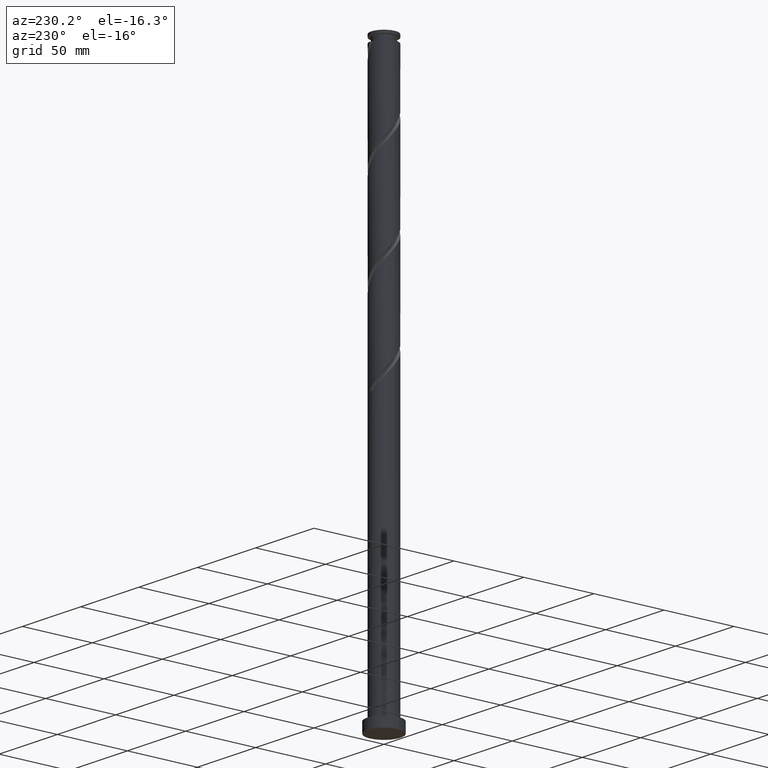
[diagram: clean part render]
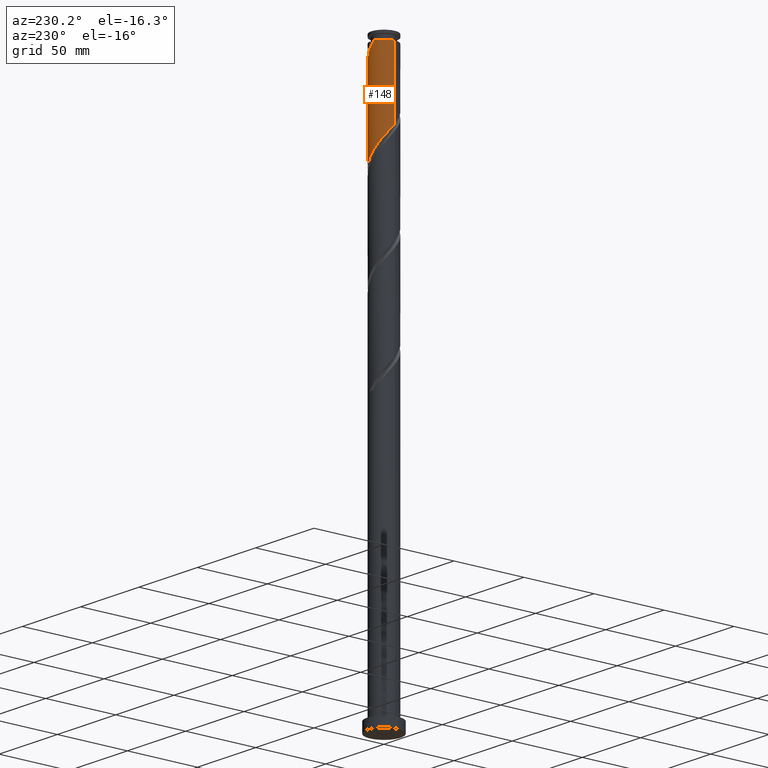
[diagram: same view with one face highlighted and labeled with its STEP entity id]
A machine part, auxiliary view. The second image highlights one B-rep face of the part: STEP entity #148.
In plain terms, the highlighted cylindrical surface (edge-blend (fillet) strip) has radius 9 mm, axis along (-0, -0, -1).
Its self-contained STEP definition (entity closure, byte-faithful):
#69 = AXIS2_PLACEMENT_3D ( 'NONE', #1896, #665, #1909 ) ;
#108 = CARTESIAN_POINT ( 'NONE',  ( -1.027839790055891989, 8.991014641736004620, 331.1673565845165399 ) ) ;
#148 = ADVANCED_FACE ( 'NONE', ( #1870 ), #1717, .T. ) ;
#240 = CARTESIAN_POINT ( 'NONE',  ( 2.874716080912484539, 8.580839491336313074, 388.9451343622943114 ) ) ;
#246 = CARTESIAN_POINT ( 'NONE',  ( -3.735334782763714223, 8.188239985532636211, 334.5006899178499111 ) ) ;
#301 = EDGE_CURVE ( 'NONE', #476, #1897, #522, .T. ) ;
#412 = CARTESIAN_POINT ( 'NONE',  ( 2.717996741835194019, 8.631760691383114192, 326.7229121400720828 ) ) ;
#453 =( BOUNDED_CURVE ( )  B_SPLINE_CURVE ( 2, ( #1020, #1136, #989, #1613, #1152, #543, #1453, #1631, #1469, #1012, #1794, #1639, #246, #862, #460, #108, #1180, #1821, #1811, #412, #1975, #724, #908, #1683, #1845, #1331, #1965, #1993, #1029, #1039, #744, #1835, #897 ),
 .UNSPECIFIED., .F., .T. ) 
 B_SPLINE_CURVE_WITH_KNOTS ( ( 3, 2, 2, 2, 2, 2, 2, 2, 2, 2, 2, 2, 2, 2, 2, 2, 3 ),
 ( 0.4295286012773115170, 0.4333333333333333481, 0.4416666666666666519, 0.4500000000000000111, 0.4583333333333333148, 0.4666666666666666741, 0.4749999999999999778, 0.4833333333333333370, 0.4916666666666666408, 0.5000000000000000000, 0.5083333333333333037, 0.5166666666666667185, 0.5250000000000000222, 0.5333333333333333259, 0.5416666666666666297, 0.5500000000000000444, 0.5545286012773112949 ),
 .UNSPECIFIED. ) 
 CURVE ( )  GEOMETRIC_REPRESENTATION_ITEM ( )  RATIONAL_B_SPLINE_CURVE ( ( 0.9066196499552123811, 0.9068171577856252163, 0.9090909090909240486, 0.9041108139711723224, 0.9090909090909240486, 0.9041108139711723224, 0.9090909090909240486, 0.9041108139711723224, 0.9090909090909240486, 0.9041108139711723224, 0.9090909090909240486, 0.9041108139711723224, 0.9090909090909240486, 0.9041108139711723224, 0.9090909090909240486, 0.9041108139711723224, 0.9090909090909240486, 0.9041108139711723224, 0.9090909090909240486, 0.9041108139711723224, 0.9090909090909240486, 0.9041108139711723224, 0.9090909090909240486, 0.9041108139711723224, 0.9090909090909240486, 0.9041108139711723224, 0.9090909090909240486, 0.9041108139711723224, 0.9090909090909240486, 0.9041108139711723224, 0.9090909090909240486, 0.9063845652764712657, 0.9066196499552123811 ) ) 
 REPRESENTATION_ITEM ( '' )  );
#460 = CARTESIAN_POINT ( 'NONE',  ( -1.951277935484181381, 8.785927066536149965, 332.2784676956276257 ) ) ;
#473 = CARTESIAN_POINT ( 'NONE',  ( 0.000000000000000000, 0.000000000000000000, 400.0000000000000000 ) ) ;
#476 = VERTEX_POINT ( 'NONE', #1181 ) ;
#477 = CARTESIAN_POINT ( 'NONE',  ( 9.000000000000000000, 1.102182119232617714E-15, 400.0000000000000000 ) ) ;
#522 =( BOUNDED_CURVE ( )  B_SPLINE_CURVE ( 2, ( #1641, #856, #1174, #1463, #1479, #1969, #1006, #1942, #1313, #1023, #574, #700, #1805, #240, #554, #545, #1471, #728, #708 ),
 .UNSPECIFIED., .F., .T. ) 
 B_SPLINE_CURVE_WITH_KNOTS ( ( 3, 2, 2, 2, 2, 2, 2, 2, 2, 3 ),
 ( 0.6795286012773114059, 0.6833333333333333481, 0.6916666666666666519, 0.6999999999999999556, 0.7083333333333332593, 0.7166666666666667851, 0.7250000000000000888, 0.7333333333333335036, 0.7416666666666668073, 0.7500000000000001110 ),
 .UNSPECIFIED. ) 
 CURVE ( )  GEOMETRIC_REPRESENTATION_ITEM ( )  RATIONAL_B_SPLINE_CURVE ( ( 0.9066196499552201526, 0.9068171577856329879, 0.9090909090909319312, 0.9041108139711800940, 0.9090909090909319312, 0.9041108139711800940, 0.9090909090909319312, 0.9041108139711800940, 0.9090909090909319312, 0.9041108139711800940, 0.9090909090909319312, 0.9041108139711800940, 0.9090909090909319312, 0.9041108139711800940, 0.9090909090909319312, 0.9041108139711800940, 0.9090909090909319312, 0.9041108139711799829, 0.9090909090909320422 ) ) 
 REPRESENTATION_ITEM ( '' )  );
#543 = CARTESIAN_POINT ( 'NONE',  ( -8.300366980569171105, 3.605371951659137597, 342.2784676956276826 ) ) ;
#545 = CARTESIAN_POINT ( 'NONE',  ( 1.027839790055897984, 8.991014641736025936, 391.1673565845164831 ) ) ;
#552 = VECTOR ( 'NONE', #1426, 1000.000000000000000 ) ;
#554 = CARTESIAN_POINT ( 'NONE',  ( 1.951277935484194481, 8.785927066536167729, 390.0562454734052835 ) ) ;
#572 = EDGE_CURVE ( 'NONE', #1894, #1745, #796, .T. ) ;
#574 = CARTESIAN_POINT ( 'NONE',  ( 5.356139575911548434, 7.232687525626578129, 385.6118010289608264 ) ) ;
#654 = VERTEX_POINT ( 'NONE', #1577 ) ;
#665 = DIRECTION ( 'NONE',  ( -0.000000000000000000, -0.000000000000000000, -1.000000000000000000 ) ) ;
#700 = CARTESIAN_POINT ( 'NONE',  ( 4.595953484614971885, 7.795640479728988659, 386.7229121400720828 ) ) ;
#708 = CARTESIAN_POINT ( 'NONE',  ( -1.790977386791842374, 8.819999999999987850, 394.5006899178496269 ) ) ;
#723 = EDGE_CURVE ( 'NONE', #476, #654, #1557, .T. ) ;
#724 = CARTESIAN_POINT ( 'NONE',  ( 4.453245951908126443, 7.878032712152652550, 324.5006899178498543 ) ) ;
#728 = CARTESIAN_POINT ( 'NONE',  ( -0.8639580317486598160, 9.008239308616900587, 393.3895788067387684 ) ) ;
#740 = ORIENTED_EDGE ( 'NONE', *, *, #1162, .T. ) ;
#744 = CARTESIAN_POINT ( 'NONE',  ( 8.941760922783187127, 1.022209176141312126, 314.5006899178497974 ) ) ;
#759 = CARTESIAN_POINT ( 'NONE',  ( -8.999999999999964473, 0.000000000000000000, 394.5006899178497974 ) ) ;
#796 = LINE ( 'NONE', #1069, #1928 ) ;
#856 = CARTESIAN_POINT ( 'NONE',  ( 9.000000000000015987, 0.4305959935807318062, 376.2171285332257753 ) ) ;
#862 = CARTESIAN_POINT ( 'NONE',  ( -2.874716080912472549, 8.580839491336300640, 333.3895788067387116 ) ) ;
#897 = CARTESIAN_POINT ( 'NONE',  ( 9.000000000000000000, 1.019481931689383533E-14, 313.2927998280379711 ) ) ;
#908 = CARTESIAN_POINT ( 'NONE',  ( 5.223556448372938199, 7.329014806279320560, 323.3895788067387684 ) ) ;
#933 = DIRECTION ( 'NONE',  ( -0.000000000000000000, -0.000000000000000000, -1.000000000000000000 ) ) ;
#989 = CARTESIAN_POINT ( 'NONE',  ( -8.958891231136643540, 0.8592251792533156518, 345.6118010289609401 ) ) ;
#1006 = CARTESIAN_POINT ( 'NONE',  ( 7.834876024663330440, 4.428850604632764032, 381.1673565845164262 ) ) ;
#1012 = CARTESIAN_POINT ( 'NONE',  ( -6.116325667208115213, 6.669734571524163158, 337.8340232511831687 ) ) ;
#1016 = ORIENTED_EDGE ( 'NONE', *, *, #723, .T. ) ;
#1020 = CARTESIAN_POINT ( 'NONE',  ( -8.999999999999996447, 4.544318287882294977E-15, 346.6261331613712287 ) ) ;
#1023 = CARTESIAN_POINT ( 'NONE',  ( 6.116325667208127648, 6.669734571524174704, 384.5006899178498543 ) ) ;
#1029 = CARTESIAN_POINT ( 'NONE',  ( 8.533832754774708818, 2.858968085434720141, 316.7229121400720828 ) ) ;
#1039 = CARTESIAN_POINT ( 'NONE',  ( 8.834322409043297242, 1.962026119858946149, 315.6118010289609970 ) ) ;
#1069 = CARTESIAN_POINT ( 'NONE',  ( -9.000000000000000000, 0.000000000000000000, 400.0000000000000000 ) ) ;
#1134 = AXIS2_PLACEMENT_3D ( 'NONE', #473, #933, #1553 ) ;
#1136 = CARTESIAN_POINT ( 'NONE',  ( -9.000000000000000000, 0.4305959935807554539, 346.1175846358073045 ) ) ;
#1152 = CARTESIAN_POINT ( 'NONE',  ( -8.584475003159690587, 2.703107271294722835, 343.3895788067387116 ) ) ;
#1162 = EDGE_CURVE ( 'NONE', #1894, #1897, #1163, .T. ) ;
#1163 = CIRCLE ( 'NONE', #69, 8.999999999999964473 ) ;
#1174 = CARTESIAN_POINT ( 'NONE',  ( 8.958891231136661304, 0.8592251792533075472, 376.7229121400720828 ) ) ;
#1180 = CARTESIAN_POINT ( 'NONE',  ( -0.08194087915361840391, 8.999626975176445498, 330.0562454734054540 ) ) ;
#1181 = CARTESIAN_POINT ( 'NONE',  ( 9.000000000000015987, -3.019579914974393641E-15, 375.7085800076617375 ) ) ;
#1291 = CARTESIAN_POINT ( 'NONE',  ( -8.999999999999998224, 4.544318287882294977E-15, 346.6261331613712287 ) ) ;
#1306 = ORIENTED_EDGE ( 'NONE', *, *, #1318, .F. ) ;
#1313 = CARTESIAN_POINT ( 'NONE',  ( 6.742855367982802939, 5.961031914565275258, 383.3895788067385979 ) ) ;
#1318 = EDGE_CURVE ( 'NONE', #1745, #654, #453, .T. ) ;
#1331 = CARTESIAN_POINT ( 'NONE',  ( 7.272527190513282669, 5.385642690076863914, 320.0562454734053972 ) ) ;
#1369 = CARTESIAN_POINT ( 'NONE',  ( -1.790977386791842374, 8.819999999999987850, 394.5006899178496269 ) ) ;
#1405 = DIRECTION ( 'NONE',  ( -0.000000000000000000, -0.000000000000000000, -1.000000000000000000 ) ) ;
#1426 = DIRECTION ( 'NONE',  ( -0.000000000000000000, -0.000000000000000000, -1.000000000000000000 ) ) ;
#1453 = CARTESIAN_POINT ( 'NONE',  ( -7.834876024663315341, 4.428850604632757815, 341.1673565845165967 ) ) ;
#1463 = CARTESIAN_POINT ( 'NONE',  ( 8.868583025750229609, 1.800842590930306519, 377.8340232511832255 ) ) ;
#1469 = CARTESIAN_POINT ( 'NONE',  ( -6.742855367982785175, 5.961031914565269929, 338.9451343622943114 ) ) ;
#1471 = CARTESIAN_POINT ( 'NONE',  ( 0.08194087915362534280, 8.999626975176459709, 392.2784676956274552 ) ) ;
#1479 = CARTESIAN_POINT ( 'NONE',  ( 8.584475003159710127, 2.703107271294720171, 378.9451343622941977 ) ) ;
#1493 = ORIENTED_EDGE ( 'NONE', *, *, #572, .F. ) ;
#1553 = DIRECTION ( 'NONE',  ( -1.000000000000000000, 0.000000000000000000, 0.000000000000000000 ) ) ;
#1557 = LINE ( 'NONE', #477, #552 ) ;
#1577 = CARTESIAN_POINT ( 'NONE',  ( 9.000000000000000000, 1.019481931689383533E-14, 313.2927998280379711 ) ) ;
#1613 = CARTESIAN_POINT ( 'NONE',  ( -8.868583025750210069, 1.800842590930307185, 344.5006899178499680 ) ) ;
#1631 = CARTESIAN_POINT ( 'NONE',  ( -7.369385068757460466, 5.252329257606380253, 340.0562454734053972 ) ) ;
#1639 = CARTESIAN_POINT ( 'NONE',  ( -4.595953484614954121, 7.795640479728977112, 335.6118010289609970 ) ) ;
#1641 = CARTESIAN_POINT ( 'NONE',  ( 9.000000000000017764, -3.019579914974393641E-15, 375.7085800076617375 ) ) ;
#1683 = CARTESIAN_POINT ( 'NONE',  ( 5.993866944837742849, 6.779996900405991234, 322.2784676956277394 ) ) ;
#1717 = CYLINDRICAL_SURFACE ( 'NONE', #1134, 9.000000000000000000 ) ;
#1745 = VERTEX_POINT ( 'NONE', #1291 ) ;
#1794 = CARTESIAN_POINT ( 'NONE',  ( -5.356139575911533335, 7.232687525626570135, 336.7229121400720828 ) ) ;
#1805 = CARTESIAN_POINT ( 'NONE',  ( 3.735334782763725325, 8.188239985532652199, 387.8340232511830550 ) ) ;
#1811 = CARTESIAN_POINT ( 'NONE',  ( 1.790977386791922310, 8.819999999999996732, 327.8340232511832824 ) ) ;
#1821 = CARTESIAN_POINT ( 'NONE',  ( 0.8639580317486544869, 9.008239308616881047, 328.9451343622942545 ) ) ;
#1835 = CARTESIAN_POINT ( 'NONE',  ( 8.999999999999996447, 0.5127636370179089464, 313.8983911374225499 ) ) ;
#1845 = CARTESIAN_POINT ( 'NONE',  ( 6.633197067675509651, 6.082819795241429794, 321.1673565845164831 ) ) ;
#1870 = FACE_OUTER_BOUND ( 'NONE', #1944, .T. ) ;
#1894 = VERTEX_POINT ( 'NONE', #759 ) ;
#1896 = CARTESIAN_POINT ( 'NONE',  ( 0.000000000000000000, 0.000000000000000000, 394.5006899178497974 ) ) ;
#1897 = VERTEX_POINT ( 'NONE', #1369 ) ;
#1909 = DIRECTION ( 'NONE',  ( -1.000000000000000000, 0.000000000000000000, 0.000000000000000000 ) ) ;
#1919 = ORIENTED_EDGE ( 'NONE', *, *, #301, .F. ) ;
#1928 = VECTOR ( 'NONE', #1405, 1000.000000000000000 ) ;
#1942 = CARTESIAN_POINT ( 'NONE',  ( 7.369385068757479118, 5.252329257606382917, 382.2784676956276257 ) ) ;
#1944 = EDGE_LOOP ( 'NONE', ( #1919, #1016, #1306, #1493, #740 ) ) ;
#1965 = CARTESIAN_POINT ( 'NONE',  ( 7.752935145509697534, 4.570776370543681466, 318.9451343622943682 ) ) ;
#1969 = CARTESIAN_POINT ( 'NONE',  ( 8.300366980569192421, 3.605371951659134933, 380.0562454734055109 ) ) ;
#1975 = CARTESIAN_POINT ( 'NONE',  ( 3.585621346871659121, 8.254896701767883371, 325.6118010289609970 ) ) ;
#1993 = CARTESIAN_POINT ( 'NONE',  ( 8.233343100506116841, 3.755910051010501682, 317.8340232511832255 ) ) ;